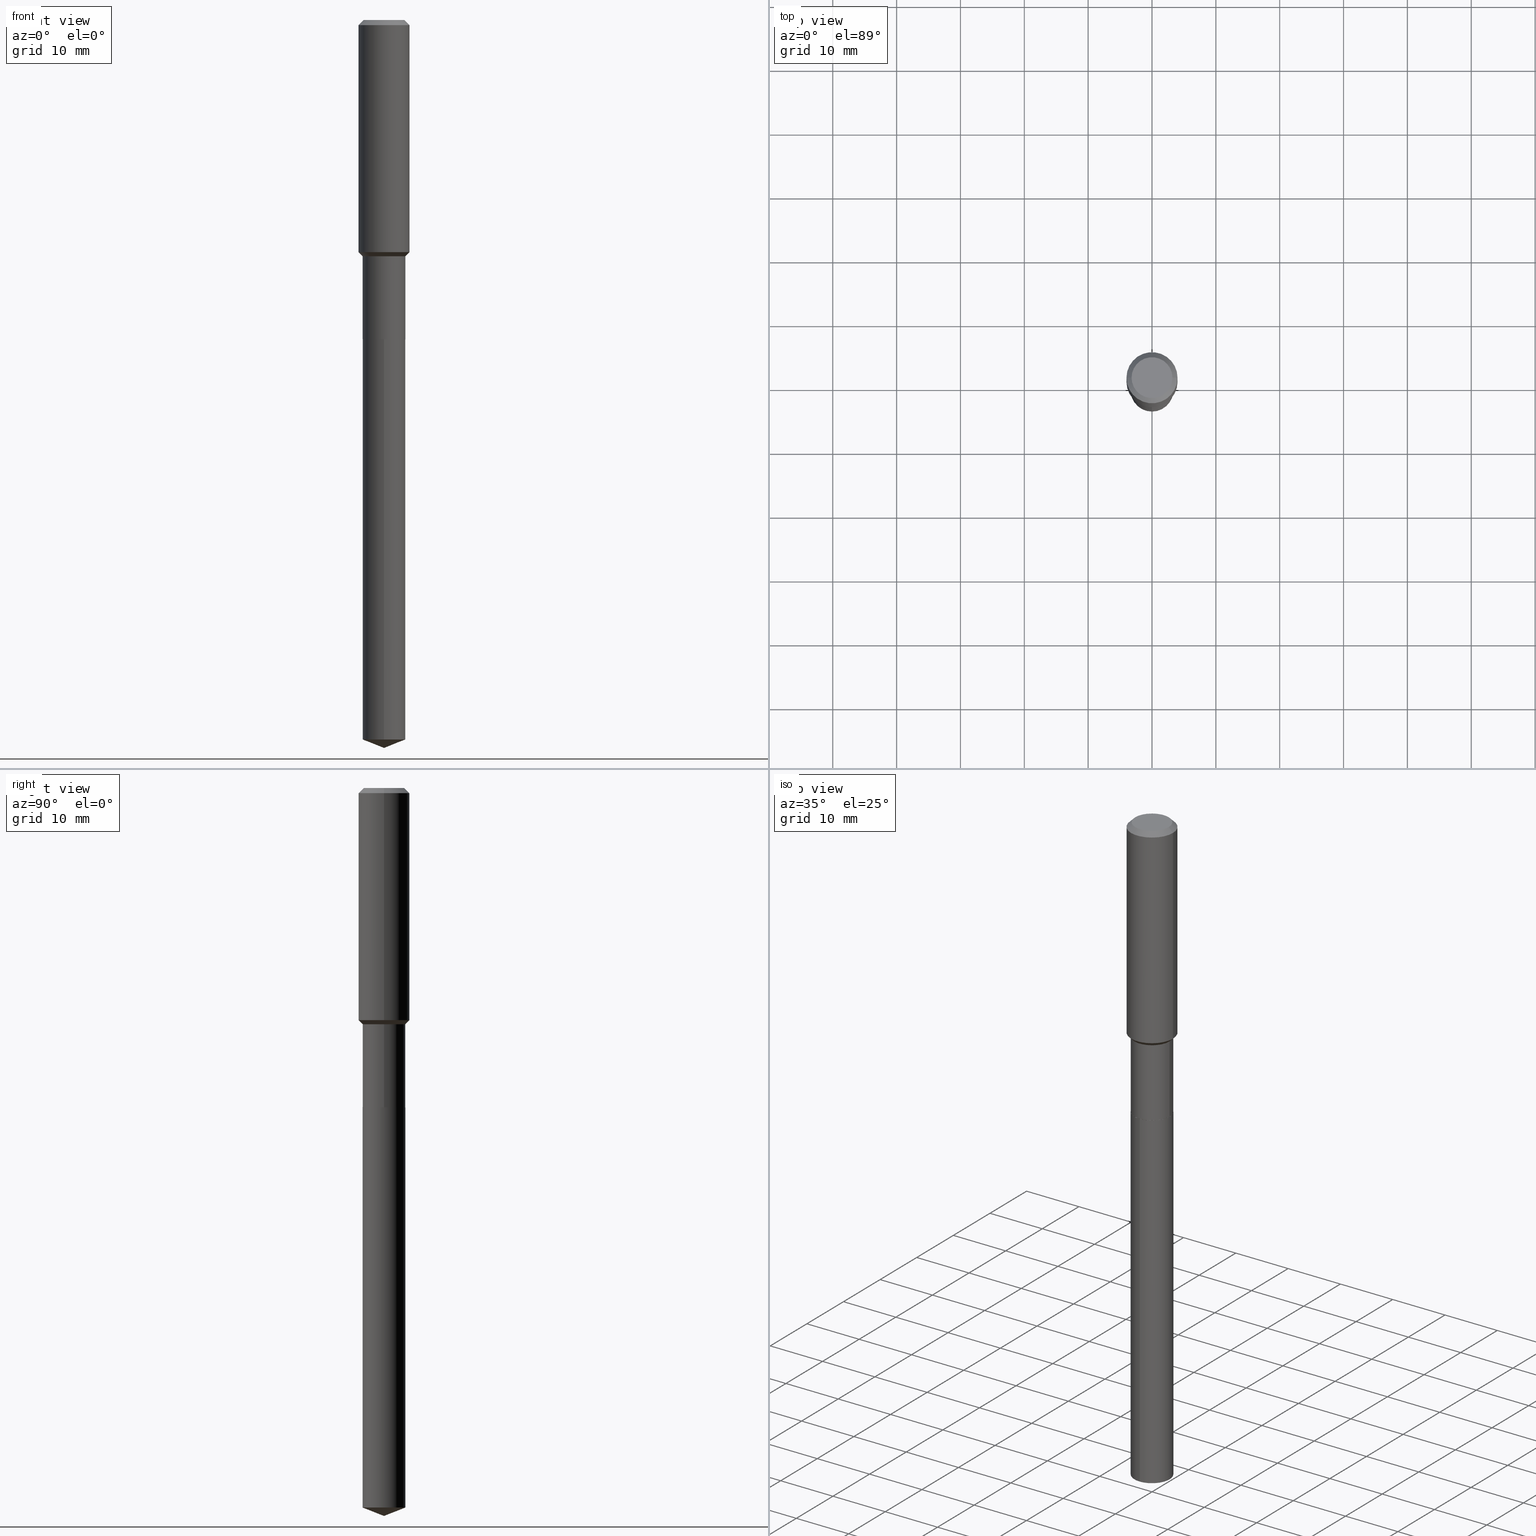
[diagram: canonical four-view strip — front | top / right | iso, engineering-drawing reading convention]
A machine part, canonical four-view strip (front | top / right | iso — engineering-drawing reading convention). The complete STEP part file that produces these views, byte-faithful:
ISO-10303-21;
HEADER;
FILE_DESCRIPTION (( 'STEP AP203' ),
    '1' );
FILE_NAME ('66643.STEP',
    '2024-04-25T02:42:03',
    ( '' ),
    ( '' ),
    'SwSTEP 2.0',
    'SolidWorks 2023',
    '' );
FILE_SCHEMA (( 'CONFIG_CONTROL_DESIGN' ));
ENDSEC;

DATA;
#1 = CARTESIAN_POINT ( 'NONE',  ( -0.1260000000000000009, 9.348441284752484904E-16, 3.860086710906114178E-18 ) ) ;
#2 = EDGE_CURVE ( 'NONE', #22, #226, #352, .T. ) ;
#3 = PERSON_AND_ORGANIZATION ( #292, #380 ) ;
#4 = APPLICATION_CONTEXT ( 'configuration controlled 3d designs of mechanical parts and assemblies' ) ;
#5 = PRODUCT_DEFINITION_SHAPE ( 'NONE', 'NONE',  #345 ) ;
#6 = AXIS2_PLACEMENT_3D ( 'NONE', #229, #231, #264 ) ;
#7 = CIRCLE ( 'NONE', #378, 0.1318999999999999895 ) ;
#8 = APPROVAL_PERSON_ORGANIZATION ( #487, #484, #402 ) ;
#9 = ORIENTED_EDGE ( 'NONE', *, *, #341, .F. ) ;
#10 = CALENDAR_DATE ( 2024, 24, 4 ) ;
#11 = EDGE_CURVE ( 'NONE', #226, #115, #162, .T. ) ;
#12 = AXIS2_PLACEMENT_3D ( 'NONE', #181, #176, #245 ) ;
#13 = EDGE_LOOP ( 'NONE', ( #428, #224, #235, #80 ) ) ;
#14 = ORIENTED_EDGE ( 'NONE', *, *, #289, .F. ) ;
#15 = DIMENSIONAL_EXPONENTS ( 1.000000000000000000, 0.000000000000000000, 0.000000000000000000, 0.000000000000000000, 0.000000000000000000, 0.000000000000000000, 0.000000000000000000 ) ;
#16 = CARTESIAN_POINT ( 'NONE',  ( -0.1313999999999999890, -5.939327860723960338E-15, -1.968500000000000139 ) ) ;
#17 = CARTESIAN_POINT ( 'NONE',  ( -4.719860820353100843E-47, 6.738710358733633822E-33, 1.930043355456229866E-18 ) ) ;
#18 = AXIS2_PLACEMENT_3D ( 'NONE', #58, #354, #358 ) ;
#19 = CIRCLE ( 'NONE', #371, 0.1260000000000000009 ) ;
#20 = DIRECTION ( 'NONE',  ( -2.445397477310179660E-29, 3.491583485851871163E-15, 1.000000000000000000 ) ) ;
#21 = DIRECTION ( 'NONE',  ( -1.000000000000000000, 6.982962677686265922E-15, -4.876176775795935793E-29 ) ) ;
#22 = VERTEX_POINT ( 'NONE', #126 ) ;
#23 = CARTESIAN_POINT ( 'NONE',  ( 7.703226739483228723E-31, -1.099816621735597661E-16, -0.03150000000000019451 ) ) ;
#24 = ORIENTED_EDGE ( 'NONE', *, *, #444, .F. ) ;
#25 = ORIENTED_EDGE ( 'NONE', *, *, #361, .T. ) ;
#26 = DIRECTION ( 'NONE',  ( -2.445468806185136597E-29, 3.491481338843145583E-15, 1.000000000000000000 ) ) ;
#27 = EDGE_LOOP ( 'NONE', ( #335, #130, #418 ) ) ;
#28 = LINE ( 'NONE', #166, #396 ) ;
#29 = LINE ( 'NONE', #41, #478 ) ;
#30 = EDGE_CURVE ( 'NONE', #297, #129, #272, .T. ) ;
#31 = DIRECTION ( 'NONE',  ( -2.445397477310179660E-29, 3.491583485851871163E-15, 1.000000000000000000 ) ) ;
#32 = DIRECTION ( 'NONE',  ( 1.000000000000000000, -6.982962677686265133E-15, 0.000000000000000000 ) ) ;
#33 = CARTESIAN_POINT ( 'NONE',  ( 1.059404549109931292E-28, -1.621709356054687186E-14, -4.488199999999999079 ) ) ;
#34 =( NAMED_UNIT ( * ) PLANE_ANGLE_UNIT ( ) SI_UNIT ( $, .RADIAN. ) );
#35 = DIRECTION ( 'NONE',  ( -2.445468806185136597E-29, 3.491481338843145583E-15, 1.000000000000000000 ) ) ;
#36 = CYLINDRICAL_SURFACE ( 'NONE', #306, 0.1575000000000000844 ) ;
#37 = CALENDAR_DATE ( 2024, 24, 4 ) ;
#38 = PLANE ( 'NONE',  #78 ) ;
#39 = LOCAL_TIME ( 22, 42, 3.000000000000000000, #110 ) ;
#40 = CARTESIAN_POINT ( 'NONE',  ( 0.000000000000000000, 0.000000000000000000, 0.000000000000000000 ) ) ;
#41 = CARTESIAN_POINT ( 'NONE',  ( 9.372058684676199937E-16, 0.1318999999999931061, -1.968500000000000361 ) ) ;
#42 = CALENDAR_DATE ( 2024, 24, 4 ) ;
#43 = CC_DESIGN_PERSON_AND_ORGANIZATION_ASSIGNMENT ( #291, #106, ( #345 ) ) ;
#44 = EDGE_CURVE ( 'NONE', #348, #385, #94, .T. ) ;
#45 = AXIS2_PLACEMENT_3D ( 'NONE', #304, #135, #160 ) ;
#46 = CARTESIAN_POINT ( 'NONE',  ( 3.561825316208651906E-29, -5.085342570025042633E-15, -1.456500000000000128 ) ) ;
#47 = ORIENTED_EDGE ( 'NONE', *, *, #216, .F. ) ;
#48 = CARTESIAN_POINT ( 'NONE',  ( 4.813905344975441835E-29, -6.872981015512731707E-15, -1.968500000000000139 ) ) ;
#49 = LINE ( 'NONE', #309, #157 ) ;
#50 = EDGE_LOOP ( 'NONE', ( #463, #395 ) ) ;
#51 = AXIS2_PLACEMENT_3D ( 'NONE', #168, #317, #32 ) ;
#52 = ORIENTED_EDGE ( 'NONE', *, *, #141, .T. ) ;
#53 = CARTESIAN_POINT ( 'NONE',  ( -0.1318999999999999062, -4.148136701557471154E-15, -1.456500000000000128 ) ) ;
#54 = DIRECTION ( 'NONE',  ( -0.7071067811865451302, 2.468850131082231817E-15, -0.7071067811865499042 ) ) ;
#55 = DIRECTION ( 'NONE',  ( 1.000000000000000000, -6.982962677686269077E-15, 0.000000000000000000 ) ) ;
#56 = ORIENTED_EDGE ( 'NONE', *, *, #258, .T. ) ;
#57 = EDGE_CURVE ( 'NONE', #316, #372, #422, .T. ) ;
#58 = CARTESIAN_POINT ( 'NONE',  ( 3.499221314770312017E-29, -4.995960647750656917E-15, -1.430900000000000061 ) ) ;
#59 = CARTESIAN_POINT ( 'NONE',  ( -8.529991786413033970E-28, 1.217931928410080037E-13, 34.88187874015748235 ) ) ;
#60 = VECTOR ( 'NONE', #281, 39.37007874015748143 ) ;
#61 = CARTESIAN_POINT ( 'NONE',  ( 3.561825316208651906E-29, -5.085342570025042633E-15, -1.456500000000000128 ) ) ;
#62 = DIRECTION ( 'NONE',  ( 1.000000000000000000, -6.982962677686265922E-15, 0.000000000000000000 ) ) ;
#63 = APPROVAL_DATE_TIME ( #217, #484 ) ;
#64 = APPLICATION_PROTOCOL_DEFINITION ( 'international standard', 'config_control_design', 1994, #4 ) ;
#65 = LINE ( 'NONE', #53, #187 ) ;
#66 = CARTESIAN_POINT ( 'NONE',  ( -9.017535279989762188E-30, -1.505812983671227706E-14, -1.968499999999999694 ) ) ;
#67 = MANIFOLD_SOLID_BREP ( 'Body-Move/Copy2[2]', #133 ) ;
#68 = ADVANCED_FACE ( 'NONE', ( #156 ), #332, .T. ) ;
#69 = AXIS2_PLACEMENT_3D ( 'NONE', #473, #26, #386 ) ;
#70 = DIRECTION ( 'NONE',  ( -2.445397477310179380E-29, 3.491583485851871163E-15, 1.000000000000000000 ) ) ;
#71 = DIRECTION ( 'NONE',  ( 1.000000000000000000, -6.982962677686265922E-15, 4.876281427513067258E-29 ) ) ;
#72 = PERSON_AND_ORGANIZATION ( #292, #380 ) ;
#73 = ORIENTED_EDGE ( 'NONE', *, *, #465, .T. ) ;
#74 = DIRECTION ( 'NONE',  ( -2.445468806185136597E-29, 3.491481338843145583E-15, 1.000000000000000000 ) ) ;
#75 = AXIS2_PLACEMENT_3D ( 'NONE', #442, #239, #294 ) ;
#76 = AXIS2_PLACEMENT_3D ( 'NONE', #475, #268, #132 ) ;
#77 = FACE_OUTER_BOUND ( 'NONE', #220, .T. ) ;
#78 = AXIS2_PLACEMENT_3D ( 'NONE', #66, #210, #327 ) ;
#79 = CARTESIAN_POINT ( 'NONE',  ( -0.1575000000000000011, 9.898349595620272334E-16, -0.03150000000000019451 ) ) ;
#80 = ORIENTED_EDGE ( 'NONE', *, *, #57, .F. ) ;
#81 = ORIENTED_EDGE ( 'NONE', *, *, #30, .F. ) ;
#82 = ORIENTED_EDGE ( 'NONE', *, *, #289, .T. ) ;
#83 = CARTESIAN_POINT ( 'NONE',  ( 0.1318999999999999340, -9.210527771868182178E-16, 6.431677167274836239E-30 ) ) ;
#84 = LINE ( 'NONE', #33, #427 ) ;
#85 = CONICAL_SURFACE ( 'NONE', #227, 0.1313999999999999890, 0.7853981633975507526 ) ;
#86 = APPROVAL_PERSON_ORGANIZATION ( #72, #128, #174 ) ;
#87 = ORIENTED_EDGE ( 'NONE', *, *, #274, .T. ) ;
#88 = LINE ( 'NONE', #172, #449 ) ;
#89 = EDGE_CURVE ( 'NONE', #129, #297, #477, .T. ) ;
#90 = DIRECTION ( 'NONE',  ( -2.445468806185136597E-29, 3.491481338843145583E-15, 1.000000000000000000 ) ) ;
#91 = LINE ( 'NONE', #234, #462 ) ;
#92 = LINE ( 'NONE', #362, #295 ) ;
#93 = CALENDAR_DATE ( 2024, 24, 4 ) ;
#94 = CIRCLE ( 'NONE', #69, 0.1575000000000001676 ) ;
#95 = CONICAL_SURFACE ( 'NONE', #370, 99.94676754584064327, 1.195550537616121733 ) ;
#96 = COORDINATED_UNIVERSAL_TIME_OFFSET ( 5, 0, .BEHIND. ) ;
#97 = AXIS2_PLACEMENT_3D ( 'NONE', #40, #441, #243 ) ;
#98 = DIRECTION ( 'NONE',  ( 0.7071067811865451302, -7.319954787623248157E-15, -0.7071067811865499042 ) ) ;
#99 = DIRECTION ( 'NONE',  ( -2.445468806185136597E-29, 3.491481338843145583E-15, 1.000000000000000000 ) ) ;
#100 = CARTESIAN_POINT ( 'NONE',  ( 1.097543295766354916E-28, -1.567092500120036717E-14, -4.488199999999999967 ) ) ;
#101 = DATE_AND_TIME ( #42, #451 ) ;
#102 =( NAMED_UNIT ( * ) SI_UNIT ( $, .STERADIAN. ) SOLID_ANGLE_UNIT ( ) );
#103 = CARTESIAN_POINT ( 'NONE',  ( 0.000000000000000000, 0.000000000000000000, 0.000000000000000000 ) ) ;
#104 = DIRECTION ( 'NONE',  ( -2.445468806185136597E-29, 3.491481338843145583E-15, 1.000000000000000000 ) ) ;
#105 = PRODUCT_RELATED_PRODUCT_CATEGORY ( 'detail', '', ( #456 ) ) ;
#106 = PERSON_AND_ORGANIZATION_ROLE ( 'creator' ) ;
#107 = CYLINDRICAL_SURFACE ( 'NONE', #421, 0.1318999999999999895 ) ;
#108 = AXIS2_PLACEMENT_3D ( 'NONE', #429, #432, #394 ) ;
#109 = AXIS2_PLACEMENT_3D ( 'NONE', #313, #325, #111 ) ;
#110 = COORDINATED_UNIVERSAL_TIME_OFFSET ( 5, 0, .BEHIND. ) ;
#111 = DIRECTION ( 'NONE',  ( 1.000000000000000000, -6.982962677686265922E-15, 4.876281427513067258E-29 ) ) ;
#112 = CARTESIAN_POINT ( 'NONE',  ( 0.1575000000000000844, -1.099816621735587677E-15, 7.679978421878603638E-30 ) ) ;
#113 = ADVANCED_FACE ( 'NONE', ( #390 ), #369, .T. ) ;
#114 = FACE_OUTER_BOUND ( 'NONE', #127, .T. ) ;
#115 = VERTEX_POINT ( 'NONE', #343 ) ;
#116 = CLOSED_SHELL ( 'NONE', ( #190, #410, #125, #298, #184 ) ) ;
#117 = CIRCLE ( 'NONE', #213, 0.1575000000000000011 ) ;
#118 = SECURITY_CLASSIFICATION ( '', '', #182 ) ;
#119 = EDGE_LOOP ( 'NONE', ( #122, #73, #471, #186 ) ) ;
#120 = ORIENTED_EDGE ( 'NONE', *, *, #274, .F. ) ;
#121 = CC_DESIGN_PERSON_AND_ORGANIZATION_ASSIGNMENT ( #445, #293, ( #456 ) ) ;
#122 = ORIENTED_EDGE ( 'NONE', *, *, #468, .F. ) ;
#123 = CONICAL_SURFACE ( 'NONE', #448, 99.94676754584064327, 1.195550537616121733 ) ;
#124 = AXIS2_PLACEMENT_3D ( 'NONE', #103, #399, #453 ) ;
#125 = ADVANCED_FACE ( 'NONE', ( #480 ), #123, .T. ) ;
#126 = CARTESIAN_POINT ( 'NONE',  ( 0.1313999999999999890, -7.790542311360707115E-15, -1.968500000000000139 ) ) ;
#127 = EDGE_LOOP ( 'NONE', ( #466, #271 ) ) ;
#128 = APPROVAL ( #367, 'UNSPECIFIED' ) ;
#129 = VERTEX_POINT ( 'NONE', #276 ) ;
#130 = ORIENTED_EDGE ( 'NONE', *, *, #222, .T. ) ;
#131 = DIRECTION ( 'NONE',  ( 0.7071067811866199593, -2.468850131083015945E-15, 0.7071067811864750752 ) ) ;
#132 = DIRECTION ( 'NONE',  ( 1.000000000000000000, -6.982962677686265922E-15, 0.000000000000000000 ) ) ;
#133 = CLOSED_SHELL ( 'NONE', ( #68, #278, #401, #225, #177, #200, #333, #439, #113, #474, #420, #366 ) ) ;
#134 = AXIS2_PLACEMENT_3D ( 'NONE', #46, #350, #286 ) ;
#135 = DIRECTION ( 'NONE',  ( 2.445468806185136597E-29, -3.491481338843145583E-15, -1.000000000000000000 ) ) ;
#136 = CARTESIAN_POINT ( 'NONE',  ( 4.813905344975441835E-29, -6.872981015512731707E-15, -1.968500000000000139 ) ) ;
#137 = CARTESIAN_POINT ( 'NONE',  ( 1.136379234426400663E-28, -1.512435428908050663E-14, -4.488199999999999079 ) ) ;
#138 = CARTESIAN_POINT ( 'NONE',  ( 4.812682610572349594E-29, -6.871235274843310993E-15, -1.968000000000000194 ) ) ;
#139 = CYLINDRICAL_SURFACE ( 'NONE', #12, 0.1318999999999999895 ) ;
#140 = CONICAL_SURFACE ( 'NONE', #344, 0.1575000000000000011, 0.7853981633974449483 ) ;
#141 = EDGE_CURVE ( 'NONE', #115, #155, #147, .T. ) ;
#142 = CARTESIAN_POINT ( 'NONE',  ( 0.1260000000000000009, -1.027466422270894443E-15, 3.860086710919128072E-18 ) ) ;
#143 = PLANE ( 'NONE',  #388 ) ;
#144 = DIRECTION ( 'NONE',  ( -2.445397477310179660E-29, 3.491583485851871163E-15, 1.000000000000000000 ) ) ;
#145 = APPROVAL_ROLE ( '' ) ;
#146 = APPROVAL_DATE_TIME ( #329, #128 ) ;
#147 = CIRCLE ( 'NONE', #108, 0.1318999999999999895 ) ;
#148 = CC_DESIGN_PERSON_AND_ORGANIZATION_ASSIGNMENT ( #330, #328, ( #188 ) ) ;
#149 = VERTEX_POINT ( 'NONE', #199 ) ;
#150 = PERSON_AND_ORGANIZATION_ROLE ( 'creator' ) ;
#151 = ORIENTED_EDGE ( 'NONE', *, *, #353, .T. ) ;
#152 = AXIS2_PLACEMENT_3D ( 'NONE', #250, #219, #461 ) ;
#153 = ORIENTED_EDGE ( 'NONE', *, *, #170, .F. ) ;
#154 = ORIENTED_EDGE ( 'NONE', *, *, #57, .T. ) ;
#155 = VERTEX_POINT ( 'NONE', #351 ) ;
#156 = FACE_OUTER_BOUND ( 'NONE', #159, .T. ) ;
#157 = VECTOR ( 'NONE', #131, 39.37007874015748143 ) ;
#158 = LOCAL_TIME ( 22, 42, 3.000000000000000000, #408 ) ;
#159 = EDGE_LOOP ( 'NONE', ( #233, #259, #47, #24 ) ) ;
#160 = DIRECTION ( 'NONE',  ( -1.000000000000000000, 6.982962677686265922E-15, 0.000000000000000000 ) ) ;
#161 = DIRECTION ( 'NONE',  ( 2.445468806185136597E-29, -3.491481338843145583E-15, -1.000000000000000000 ) ) ;
#162 = LINE ( 'NONE', #16, #413 ) ;
#163 = DIRECTION ( 'NONE',  ( 1.000000000000000000, -6.982962677686265133E-15, 0.000000000000000000 ) ) ;
#164 = VECTOR ( 'NONE', #54, 39.37007874015748143 ) ;
#165 = AXIS2_PLACEMENT_3D ( 'NONE', #322, #99, #62 ) ;
#166 = CARTESIAN_POINT ( 'NONE',  ( -0.1318999999999999340, 9.372058684675716759E-16, -6.488075384046218569E-30 ) ) ;
#167 = APPLICATION_CONTEXT ( 'configuration controlled 3d designs of mechanical parts and assemblies' ) ;
#168 = CARTESIAN_POINT ( 'NONE',  ( 4.813905344975441835E-29, -6.872981015512731707E-15, -1.968500000000000139 ) ) ;
#169 = DIRECTION ( 'NONE',  ( -2.445468806185136597E-29, 3.491481338843145583E-15, 1.000000000000000000 ) ) ;
#170 = EDGE_CURVE ( 'NONE', #115, #459, #28, .T. ) ;
#171 = DIRECTION ( 'NONE',  ( -6.982962677686265922E-15, -1.000000000000000000, 4.142301734138382417E-15 ) ) ;
#172 = CARTESIAN_POINT ( 'NONE',  ( -0.1575000000000000844, 1.119104808822158392E-15, -7.747322767151481189E-30 ) ) ;
#173 = DIRECTION ( 'NONE',  ( 1.000000000000000000, -6.982962677686265133E-15, 0.000000000000000000 ) ) ;
#174 = APPROVAL_ROLE ( '' ) ;
#175 = EDGE_CURVE ( 'NONE', #149, #257, #284, .T. ) ;
#176 = DIRECTION ( 'NONE',  ( -2.445397477310179660E-29, 3.491583485851871163E-15, 1.000000000000000000 ) ) ;
#177 = ADVANCED_FACE ( 'NONE', ( #485 ), #326, .T. ) ;
#178 = DIRECTION ( 'NONE',  ( -2.445468806185136597E-29, 3.491481338843145583E-15, 1.000000000000000000 ) ) ;
#179 = PERSON_AND_ORGANIZATION ( #292, #380 ) ;
#180 = EDGE_CURVE ( 'NONE', #338, #459, #407, .T. ) ;
#181 = CARTESIAN_POINT ( 'NONE',  ( 4.813905344975440714E-29, -6.872981015512730918E-15, -1.968499999999999694 ) ) ;
#182 = SECURITY_CLASSIFICATION_LEVEL ( 'unclassified' ) ;
#183 = ORIENTED_EDGE ( 'NONE', *, *, #353, .F. ) ;
#184 = ADVANCED_FACE ( 'NONE', ( #114 ), #143, .F. ) ;
#185 = ORIENTED_EDGE ( 'NONE', *, *, #141, .F. ) ;
#186 = ORIENTED_EDGE ( 'NONE', *, *, #349, .F. ) ;
#187 = VECTOR ( 'NONE', #290, 39.37007874015748143 ) ;
#188 = PRODUCT_DEFINITION_FORMATION_WITH_SPECIFIED_SOURCE ( 'ANY', '', #456, .NOT_KNOWN. ) ;
#189 = EDGE_LOOP ( 'NONE', ( #424, #382, #464, #14 ) ) ;
#190 = ADVANCED_FACE ( 'NONE', ( #446 ), #107, .T. ) ;
#191 = EDGE_LOOP ( 'NONE', ( #279, #25, #193, #185 ) ) ;
#192 = PLANE ( 'NONE',  #248 ) ;
#193 = ORIENTED_EDGE ( 'NONE', *, *, #444, .T. ) ;
#194 = DIRECTION ( 'NONE',  ( -2.445468806185136597E-29, 3.491481338843145583E-15, 1.000000000000000000 ) ) ;
#195 = CIRCLE ( 'NONE', #51, 0.1313999999999999890 ) ;
#196 = VERTEX_POINT ( 'NONE', #320 ) ;
#197 = DIRECTION ( 'NONE',  ( -2.445397477310179660E-29, 3.491583485851871163E-15, 1.000000000000000000 ) ) ;
#198 = FACE_OUTER_BOUND ( 'NONE', #236, .T. ) ;
#199 = CARTESIAN_POINT ( 'NONE',  ( 9.372058684676801443E-16, 0.1318999999999844741, -4.436243208266390070 ) ) ;
#200 = ADVANCED_FACE ( 'NONE', ( #77 ), #318, .T. ) ;
#201 = CARTESIAN_POINT ( 'NONE',  ( 3.561825316208651906E-29, -5.085342570025042633E-15, -1.456500000000000128 ) ) ;
#202 = CONICAL_SURFACE ( 'NONE', #415, 0.1318999999999999062, 0.7853981633974506105 ) ;
#203 = AXIS2_PLACEMENT_3D ( 'NONE', #355, #169, #392 ) ;
#204 = CARTESIAN_POINT ( 'NONE',  ( 0.1575000000000001676, -6.095777269486245186E-15, -1.430900000000000061 ) ) ;
#205 = LENGTH_MEASURE_WITH_UNIT ( LENGTH_MEASURE( 0.02539999999999999897 ), #409 );
#206 = CARTESIAN_POINT ( 'NONE',  ( 0.1318999999999999062, -6.006395347211860259E-15, -1.456500000000000128 ) ) ;
#207 = CARTESIAN_POINT ( 'NONE',  ( -0.1313999999999999890, -5.936678633549849137E-15, -1.968500000000000139 ) ) ;
#208 = SHAPE_DEFINITION_REPRESENTATION ( #5, #454 ) ;
#209 = CC_DESIGN_DATE_AND_TIME_ASSIGNMENT ( #455, #249, ( #118 ) ) ;
#210 = DIRECTION ( 'NONE',  ( -2.438088387897960049E-29, 3.491481338843145188E-15, 1.000000000000000000 ) ) ;
#211 = PERSON_AND_ORGANIZATION ( #292, #380 ) ;
#212 = MECHANICAL_CONTEXT ( 'NONE', #167, 'mechanical' ) ;
#213 = AXIS2_PLACEMENT_3D ( 'NONE', #223, #381, #346 ) ;
#214 = FACE_OUTER_BOUND ( 'NONE', #119, .T. ) ;
#215 = UNCERTAINTY_MEASURE_WITH_UNIT (LENGTH_MEASURE( 1.000000000000000082E-05 ), #363, 'distance_accuracy_value', 'NONE');
#216 = EDGE_CURVE ( 'NONE', #155, #115, #7, .T. ) ;
#217 = DATE_AND_TIME ( #37, #158 ) ;
#218 = DIRECTION ( 'NONE',  ( -2.445468806185136597E-29, 3.491481338843145583E-15, 1.000000000000000000 ) ) ;
#219 = DIRECTION ( 'NONE',  ( -2.445397477310179660E-29, 3.491583485851871163E-15, 1.000000000000000000 ) ) ;
#220 = EDGE_LOOP ( 'NONE', ( #153, #52, #82, #254 ) ) ;
#221 = CC_DESIGN_SECURITY_CLASSIFICATION ( #118, ( #188 ) ) ;
#222 = EDGE_CURVE ( 'NONE', #303, #257, #84, .T. ) ;
#223 = CARTESIAN_POINT ( 'NONE',  ( 7.703226739483228723E-31, -1.099816621735597661E-16, -0.03150000000000019451 ) ) ;
#224 = ORIENTED_EDGE ( 'NONE', *, *, #393, .T. ) ;
#225 = ADVANCED_FACE ( 'NONE', ( #198 ), #262, .T. ) ;
#226 = VERTEX_POINT ( 'NONE', #207 ) ;
#227 = AXIS2_PLACEMENT_3D ( 'NONE', #440, #178, #173 ) ;
#228 = CARTESIAN_POINT ( 'NONE',  ( -0.1318999999999999062, -5.041083053966604545E-15, -1.456500000000000128 ) ) ;
#229 = CARTESIAN_POINT ( 'NONE',  ( 4.813905344975441835E-29, -6.872981015512731707E-15, -1.968500000000000139 ) ) ;
#230 = DIRECTION ( 'NONE',  ( -6.982962677686265922E-15, -1.000000000000000000, 3.498627837349980557E-15 ) ) ;
#231 = DIRECTION ( 'NONE',  ( -2.445397477310179660E-29, 3.491583485851871163E-15, 1.000000000000000000 ) ) ;
#232 = ORIENTED_EDGE ( 'NONE', *, *, #267, .F. ) ;
#233 = ORIENTED_EDGE ( 'NONE', *, *, #2, .T. ) ;
#234 = CARTESIAN_POINT ( 'NONE',  ( -9.210527771867702945E-16, -0.1319000000000068729, -1.968499999999999250 ) ) ;
#235 = ORIENTED_EDGE ( 'NONE', *, *, #460, .T. ) ;
#236 = EDGE_LOOP ( 'NONE', ( #376, #472, #308, #416 ) ) ;
#237 = FACE_OUTER_BOUND ( 'NONE', #483, .T. ) ;
#238 = APPROVAL_PERSON_ORGANIZATION ( #179, #256, #145 ) ;
#239 = DIRECTION ( 'NONE',  ( -2.445397477310179660E-29, 3.491583485851871163E-15, 1.000000000000000000 ) ) ;
#240 = CARTESIAN_POINT ( 'NONE',  ( -8.529991786413033970E-28, 1.217931928410080037E-13, 34.88187874015748235 ) ) ;
#241 = APPROVAL_STATUS ( 'not_yet_approved' ) ;
#242 = LINE ( 'NONE', #137, #60 ) ;
#243 = DIRECTION ( 'NONE',  ( 1.000000000000000000, 0.000000000000000000, 0.000000000000000000 ) ) ;
#244 = DIRECTION ( 'NONE',  ( 6.982962677686265922E-15, 1.000000000000000000, -3.491583485851871163E-15 ) ) ;
#245 = DIRECTION ( 'NONE',  ( -6.982962677686265922E-15, -1.000000000000000000, 4.142301734138382417E-15 ) ) ;
#246 = DATE_AND_TIME ( #10, #389 ) ;
#247 = CARTESIAN_POINT ( 'NONE',  ( 4.813905344975440714E-29, -6.872981015512730918E-15, -1.968499999999999694 ) ) ;
#248 = AXIS2_PLACEMENT_3D ( 'NONE', #17, #305, #21 ) ;
#249 = DATE_TIME_ROLE ( 'classification_date' ) ;
#250 = CARTESIAN_POINT ( 'NONE',  ( 1.084851836111940160E-28, -1.548931244881877348E-14, -4.436243208266390070 ) ) ;
#251 = CARTESIAN_POINT ( 'NONE',  ( 1.966909227049594834E-29, -1.095004149733843425E-14, -1.968500000000000139 ) ) ;
#252 = EDGE_LOOP ( 'NONE', ( #470, #302 ) ) ;
#253 = EDGE_CURVE ( 'NONE', #372, #196, #300, .T. ) ;
#254 = ORIENTED_EDGE ( 'NONE', *, *, #465, .F. ) ;
#255 = LOCAL_TIME ( 22, 42, 3.000000000000000000, #282 ) ;
#256 = APPROVAL ( #360, 'UNSPECIFIED' ) ;
#257 = VERTEX_POINT ( 'NONE', #273 ) ;
#258 = EDGE_CURVE ( 'NONE', #385, #372, #88, .T. ) ;
#259 = ORIENTED_EDGE ( 'NONE', *, *, #11, .T. ) ;
#260 = CC_DESIGN_PERSON_AND_ORGANIZATION_ASSIGNMENT ( #3, #331, ( #118 ) ) ;
#261 = ORIENTED_EDGE ( 'NONE', *, *, #44, .T. ) ;
#262 = CONICAL_SURFACE ( 'NONE', #165, 0.1318999999999999062, 0.7853981633974506105 ) ;
#263 = CC_DESIGN_APPROVAL ( #256, ( #188 ) ) ;
#264 = DIRECTION ( 'NONE',  ( -6.982962677686265922E-15, -1.000000000000000000, 4.142301734138382417E-15 ) ) ;
#265 = ORIENTED_EDGE ( 'NONE', *, *, #349, .T. ) ;
#266 = ORIENTED_EDGE ( 'NONE', *, *, #222, .F. ) ;
#267 = EDGE_CURVE ( 'NONE', #348, #196, #334, .T. ) ;
#268 = DIRECTION ( 'NONE',  ( -2.445468806185136597E-29, 3.491481338843145583E-15, 1.000000000000000000 ) ) ;
#269 = DIRECTION ( 'NONE',  ( -6.982962677686265922E-15, -1.000000000000000000, 4.142301734138382417E-15 ) ) ;
#270 = LINE ( 'NONE', #430, #324 ) ;
#271 = ORIENTED_EDGE ( 'NONE', *, *, #89, .T. ) ;
#272 = CIRCLE ( 'NONE', #6, 0.1318999999999999895 ) ;
#273 = CARTESIAN_POINT ( 'NONE',  ( -9.210527771867097494E-16, -0.1319000000000154493, -4.436243208266389182 ) ) ;
#274 = EDGE_CURVE ( 'NONE', #257, #149, #486, .T. ) ;
#275 = AXIS2_PLACEMENT_3D ( 'NONE', #458, #74, #336 ) ;
#276 = CARTESIAN_POINT ( 'NONE',  ( 9.372058684676809332E-16, 0.1318999999999931061, -1.968500000000000583 ) ) ;
#277 = DIRECTION ( 'NONE',  ( -2.445468806185136877E-29, 3.491481338843145188E-15, 1.000000000000000000 ) ) ;
#278 = ADVANCED_FACE ( 'NONE', ( #368 ), #140, .T. ) ;
#279 = ORIENTED_EDGE ( 'NONE', *, *, #11, .F. ) ;
#280 = DIRECTION ( 'NONE',  ( 0.7071067811865491270, -2.468850131082274021E-15, 0.7071067811865459074 ) ) ;
#281 = DIRECTION ( 'NONE',  ( 6.611014441532073689E-15, 0.9304175679820279043, 0.3665012267242884203 ) ) ;
#282 = COORDINATED_UNIVERSAL_TIME_OFFSET ( 5, 0, .BEHIND. ) ;
#283 = DIRECTION ( 'NONE',  ( 1.000000000000000000, -6.982962677686267499E-15, 4.876176775795936353E-29 ) ) ;
#284 = CIRCLE ( 'NONE', #75, 0.1318999999999999895 ) ;
#285 = CIRCLE ( 'NONE', #18, 0.1575000000000001676 ) ;
#286 = DIRECTION ( 'NONE',  ( 1.000000000000000000, -6.982962677686265922E-15, 0.000000000000000000 ) ) ;
#287 = DIRECTION ( 'NONE',  ( -2.445468806185136597E-29, 3.491481338843145583E-15, 1.000000000000000000 ) ) ;
#288 = CYLINDRICAL_SURFACE ( 'NONE', #275, 0.1575000000000000844 ) ;
#289 = EDGE_CURVE ( 'NONE', #155, #338, #425, .T. ) ;
#290 = DIRECTION ( 'NONE',  ( -0.7071067811865491270, 7.493145998870360471E-15, 0.7071067811865459074 ) ) ;
#291 = PERSON_AND_ORGANIZATION ( #292, #380 ) ;
#292 = PERSON ( 'UNSPECIFIED', 'UNSPECIFIED', 'UNSPECIFIED', ('UNSPECIFIED'), ('UNSPECIFIED'), ('UNSPECIFIED') ) ;
#293 = PERSON_AND_ORGANIZATION_ROLE ( 'design_owner' ) ;
#294 = DIRECTION ( 'NONE',  ( -6.982962677686265922E-15, -1.000000000000000000, 4.142301734138382417E-15 ) ) ;
#295 = VECTOR ( 'NONE', #98, 39.37007874015748143 ) ;
#296 = CC_DESIGN_APPROVAL ( #128, ( #345 ) ) ;
#297 = VERTEX_POINT ( 'NONE', #364 ) ;
#298 = ADVANCED_FACE ( 'NONE', ( #321 ), #139, .T. ) ;
#299 = AXIS2_PLACEMENT_3D ( 'NONE', #136, #90, #312 ) ;
#300 = CIRCLE ( 'NONE', #76, 0.1575000000000000011 ) ;
#301 = ORIENTED_EDGE ( 'NONE', *, *, #341, .T. ) ;
#302 = ORIENTED_EDGE ( 'NONE', *, *, #361, .F. ) ;
#303 = VERTEX_POINT ( 'NONE', #100 ) ;
#304 = CARTESIAN_POINT ( 'NONE',  ( 7.703226739483228723E-31, -1.099816621735597661E-16, -0.03150000000000019451 ) ) ;
#305 = DIRECTION ( 'NONE',  ( 2.438088387897960049E-29, -3.491481338843145188E-15, -1.000000000000000000 ) ) ;
#306 = AXIS2_PLACEMENT_3D ( 'NONE', #443, #104, #283 ) ;
#307 = ORIENTED_EDGE ( 'NONE', *, *, #482, .F. ) ;
#308 = ORIENTED_EDGE ( 'NONE', *, *, #44, .F. ) ;
#309 = CARTESIAN_POINT ( 'NONE',  ( 0.1313999999999999890, -7.790542311360707115E-15, -1.968500000000000139 ) ) ;
#310 = DIRECTION ( 'NONE',  ( -1.000000000000000000, 6.982962677686265922E-15, 0.000000000000000000 ) ) ;
#311 = DIRECTION ( 'NONE',  ( -0.7071067811866199593, 7.493145998870616062E-15, 0.7071067811864750752 ) ) ;
#312 = DIRECTION ( 'NONE',  ( 1.000000000000000000, -6.982962677686265133E-15, 0.000000000000000000 ) ) ;
#313 = CARTESIAN_POINT ( 'NONE',  ( -9.439721640706201686E-47, 1.347742071746726764E-32, 3.860086710912459732E-18 ) ) ;
#314 = CIRCLE ( 'NONE', #109, 0.1260000000000000009 ) ;
#315 = ORIENTED_EDGE ( 'NONE', *, *, #383, .T. ) ;
#316 = VERTEX_POINT ( 'NONE', #1 ) ;
#317 = DIRECTION ( 'NONE',  ( -2.445468806185136597E-29, 3.491481338843145583E-15, 1.000000000000000000 ) ) ;
#318 = CYLINDRICAL_SURFACE ( 'NONE', #203, 0.1318999999999999340 ) ;
#319 = CC_DESIGN_PERSON_AND_ORGANIZATION_ASSIGNMENT ( #211, #150, ( #188 ) ) ;
#320 = CARTESIAN_POINT ( 'NONE',  ( 0.1575000000000000011, -1.209798283909146741E-15, -0.03150000000000019451 ) ) ;
#321 = FACE_OUTER_BOUND ( 'NONE', #426, .T. ) ;
#322 = CARTESIAN_POINT ( 'NONE',  ( 3.561825316208651906E-29, -5.085342570025042633E-15, -1.456500000000000128 ) ) ;
#323 = DIRECTION ( 'NONE',  ( -6.982962677686265922E-15, -1.000000000000000000, 3.498627837349980557E-15 ) ) ;
#324 = VECTOR ( 'NONE', #280, 39.37007874015748143 ) ;
#325 = DIRECTION ( 'NONE',  ( -2.445468806185136597E-29, 3.491481338843145583E-15, 1.000000000000000000 ) ) ;
#326 = CYLINDRICAL_SURFACE ( 'NONE', #124, 0.1318999999999999340 ) ;
#327 = DIRECTION ( 'NONE',  ( 1.000000000000000000, -6.982962677686265922E-15, 4.876176775795935793E-29 ) ) ;
#328 = PERSON_AND_ORGANIZATION_ROLE ( 'design_supplier' ) ;
#329 = DATE_AND_TIME ( #93, #255 ) ;
#330 = PERSON_AND_ORGANIZATION ( #292, #380 ) ;
#331 = PERSON_AND_ORGANIZATION_ROLE ( 'classification_officer' ) ;
#332 = CONICAL_SURFACE ( 'NONE', #406, 0.1313999999999999890, 0.7853981633975507526 ) ;
#333 = ADVANCED_FACE ( 'NONE', ( #214 ), #202, .T. ) ;
#334 = LINE ( 'NONE', #112, #419 ) ;
#335 = ORIENTED_EDGE ( 'NONE', *, *, #383, .F. ) ;
#336 = DIRECTION ( 'NONE',  ( 1.000000000000000000, -6.982962677686267499E-15, 4.876176775795936353E-29 ) ) ;
#337 = CIRCLE ( 'NONE', #134, 0.1318999999999999062 ) ;
#338 = VERTEX_POINT ( 'NONE', #206 ) ;
#339 = EDGE_LOOP ( 'NONE', ( #266, #315, #120 ) ) ;
#340 = DIRECTION ( 'NONE',  ( -2.445468806185136877E-29, 3.491481338843145188E-15, 1.000000000000000000 ) ) ;
#341 = EDGE_CURVE ( 'NONE', #257, #297, #91, .T. ) ;
#342 = EDGE_LOOP ( 'NONE', ( #347, #307, #154, #417 ) ) ;
#343 = CARTESIAN_POINT ( 'NONE',  ( -0.1318999999999999895, -5.041083053966604545E-15, -1.968000000000000194 ) ) ;
#344 = AXIS2_PLACEMENT_3D ( 'NONE', #23, #161, #310 ) ;
#345 = PRODUCT_DEFINITION ( 'UNKNOWN', '', #188, #434 ) ;
#346 = DIRECTION ( 'NONE',  ( 1.000000000000000000, -6.982962677686265922E-15, 0.000000000000000000 ) ) ;
#347 = ORIENTED_EDGE ( 'NONE', *, *, #393, .F. ) ;
#348 = VERTEX_POINT ( 'NONE', #204 ) ;
#349 = EDGE_CURVE ( 'NONE', #385, #348, #285, .T. ) ;
#350 = DIRECTION ( 'NONE',  ( -2.445468806185136597E-29, 3.491481338843145583E-15, 1.000000000000000000 ) ) ;
#351 = CARTESIAN_POINT ( 'NONE',  ( 0.1318999999999999895, -7.792288052030129408E-15, -1.968000000000000194 ) ) ;
#352 = CIRCLE ( 'NONE', #299, 0.1313999999999999890 ) ;
#353 = EDGE_CURVE ( 'NONE', #149, #129, #29, .T. ) ;
#354 = DIRECTION ( 'NONE',  ( -2.445468806185136597E-29, 3.491481338843145583E-15, 1.000000000000000000 ) ) ;
#355 = CARTESIAN_POINT ( 'NONE',  ( 0.000000000000000000, 0.000000000000000000, 0.000000000000000000 ) ) ;
#356 = AXIS2_PLACEMENT_3D ( 'NONE', #61, #35, #488 ) ;
#357 =( GEOMETRIC_REPRESENTATION_CONTEXT ( 3 ) GLOBAL_UNCERTAINTY_ASSIGNED_CONTEXT ( ( #215 ) ) GLOBAL_UNIT_ASSIGNED_CONTEXT ( ( #363, #34, #102 ) ) REPRESENTATION_CONTEXT ( 'NONE', 'WORKASPACE' ) );
#358 = DIRECTION ( 'NONE',  ( 1.000000000000000000, -6.982962677686267499E-15, 0.000000000000000000 ) ) ;
#359 = FACE_OUTER_BOUND ( 'NONE', #191, .T. ) ;
#360 = APPROVAL_STATUS ( 'not_yet_approved' ) ;
#361 = EDGE_CURVE ( 'NONE', #226, #22, #195, .T. ) ;
#362 = CARTESIAN_POINT ( 'NONE',  ( 0.1575000000000000011, -1.190510096822576026E-15, -0.03150000000000019451 ) ) ;
#363 =( CONVERSION_BASED_UNIT ( 'INCH', #205 ) LENGTH_UNIT ( ) NAMED_UNIT ( #15 ) );
#364 = CARTESIAN_POINT ( 'NONE',  ( -9.210527771867702945E-16, -0.1319000000000068729, -1.968499999999999472 ) ) ;
#365 = COORDINATED_UNIVERSAL_TIME_OFFSET ( 5, 0, .BEHIND. ) ;
#366 = ADVANCED_FACE ( 'NONE', ( #359 ), #85, .T. ) ;
#367 = APPROVAL_STATUS ( 'not_yet_approved' ) ;
#368 = FACE_OUTER_BOUND ( 'NONE', #13, .T. ) ;
#369 = CONICAL_SURFACE ( 'NONE', #45, 0.1575000000000000011, 0.7853981633974449483 ) ;
#370 = AXIS2_PLACEMENT_3D ( 'NONE', #240, #144, #323 ) ;
#371 = AXIS2_PLACEMENT_3D ( 'NONE', #398, #218, #71 ) ;
#372 = VERTEX_POINT ( 'NONE', #397 ) ;
#373 = MANIFOLD_SOLID_BREP ( 'Body-Move/Copy2[1]', #116 ) ;
#374 = FACE_OUTER_BOUND ( 'NONE', #50, .T. ) ;
#375 = ORIENTED_EDGE ( 'NONE', *, *, #89, .F. ) ;
#376 = ORIENTED_EDGE ( 'NONE', *, *, #180, .T. ) ;
#377 = CC_DESIGN_DATE_AND_TIME_ASSIGNMENT ( #246, #447, ( #345 ) ) ;
#378 = AXIS2_PLACEMENT_3D ( 'NONE', #138, #481, #55 ) ;
#379 = EDGE_LOOP ( 'NONE', ( #384, #265, #457, #467 ) ) ;
#380 = ORGANIZATION ( 'UNSPECIFIED', 'UNSPECIFIED', '' ) ;
#381 = DIRECTION ( 'NONE',  ( -2.445468806185136597E-29, 3.491481338843145583E-15, 1.000000000000000000 ) ) ;
#382 = ORIENTED_EDGE ( 'NONE', *, *, #170, .T. ) ;
#383 = EDGE_CURVE ( 'NONE', #303, #149, #242, .T. ) ;
#384 = ORIENTED_EDGE ( 'NONE', *, *, #258, .F. ) ;
#385 = VERTEX_POINT ( 'NONE', #433 ) ;
#386 = DIRECTION ( 'NONE',  ( 1.000000000000000000, -6.982962677686267499E-15, 0.000000000000000000 ) ) ;
#387 = AXIS2_PLACEMENT_3D ( 'NONE', #476, #197, #269 ) ;
#388 = AXIS2_PLACEMENT_3D ( 'NONE', #251, #404, #244 ) ;
#389 = LOCAL_TIME ( 22, 42, 3.000000000000000000, #96 ) ;
#390 = FACE_OUTER_BOUND ( 'NONE', #342, .T. ) ;
#391 = EDGE_LOOP ( 'NONE', ( #87, #151, #81, #9 ) ) ;
#392 = DIRECTION ( 'NONE',  ( 1.000000000000000000, -6.982962677686267499E-15, 4.876176775795935793E-29 ) ) ;
#393 = EDGE_CURVE ( 'NONE', #412, #196, #92, .T. ) ;
#394 = DIRECTION ( 'NONE',  ( 1.000000000000000000, -6.982962677686269077E-15, 0.000000000000000000 ) ) ;
#395 = ORIENTED_EDGE ( 'NONE', *, *, #479, .T. ) ;
#396 = VECTOR ( 'NONE', #340, 39.37007874015748143 ) ;
#397 = CARTESIAN_POINT ( 'NONE',  ( -0.1575000000000000011, -1.433866346139949795E-15, -0.03150000000000019451 ) ) ;
#398 = CARTESIAN_POINT ( 'NONE',  ( -9.439721640706201686E-47, 1.347742071746726764E-32, 3.860086710912459732E-18 ) ) ;
#399 = DIRECTION ( 'NONE',  ( -2.445468806185136597E-29, 3.491481338843145583E-15, 1.000000000000000000 ) ) ;
#400 = DIRECTION ( 'NONE',  ( -2.445397477310179380E-29, 3.491583485851871163E-15, 1.000000000000000000 ) ) ;
#401 = ADVANCED_FACE ( 'NONE', ( #237 ), #36, .T. ) ;
#402 = APPROVAL_ROLE ( '' ) ;
#403 = FACE_OUTER_BOUND ( 'NONE', #252, .T. ) ;
#404 = DIRECTION ( 'NONE',  ( 2.445397477310179380E-29, -3.491583485851871163E-15, -1.000000000000000000 ) ) ;
#405 = APPROVAL_DATE_TIME ( #101, #256 ) ;
#406 = AXIS2_PLACEMENT_3D ( 'NONE', #48, #194, #163 ) ;
#407 = CIRCLE ( 'NONE', #356, 0.1318999999999999062 ) ;
#408 = COORDINATED_UNIVERSAL_TIME_OFFSET ( 5, 0, .BEHIND. ) ;
#409 =( LENGTH_UNIT ( ) NAMED_UNIT ( * ) SI_UNIT ( $, .METRE. ) );
#410 = ADVANCED_FACE ( 'NONE', ( #435 ), #95, .T. ) ;
#411 = CALENDAR_DATE ( 2024, 24, 4 ) ;
#412 = VERTEX_POINT ( 'NONE', #142 ) ;
#413 = VECTOR ( 'NONE', #311, 39.37007874015748143 ) ;
#414 = DIRECTION ( 'NONE',  ( -2.445468806185136877E-29, 3.491481338843145188E-15, 1.000000000000000000 ) ) ;
#415 = AXIS2_PLACEMENT_3D ( 'NONE', #201, #287, #431 ) ;
#416 = ORIENTED_EDGE ( 'NONE', *, *, #450, .F. ) ;
#417 = ORIENTED_EDGE ( 'NONE', *, *, #253, .T. ) ;
#418 = ORIENTED_EDGE ( 'NONE', *, *, #175, .F. ) ;
#419 = VECTOR ( 'NONE', #414, 39.37007874015748143 ) ;
#420 = ADVANCED_FACE ( 'NONE', ( #403 ), #38, .F. ) ;
#421 = AXIS2_PLACEMENT_3D ( 'NONE', #247, #31, #171 ) ;
#422 = LINE ( 'NONE', #79, #164 ) ;
#423 = ORIENTED_EDGE ( 'NONE', *, *, #175, .T. ) ;
#424 = ORIENTED_EDGE ( 'NONE', *, *, #216, .T. ) ;
#425 = LINE ( 'NONE', #83, #436 ) ;
#426 = EDGE_LOOP ( 'NONE', ( #183, #423, #301, #375 ) ) ;
#427 = VECTOR ( 'NONE', #437, 39.37007874015748854 ) ;
#428 = ORIENTED_EDGE ( 'NONE', *, *, #479, .F. ) ;
#429 = CARTESIAN_POINT ( 'NONE',  ( 4.812682610572349594E-29, -6.871235274843310993E-15, -1.968000000000000194 ) ) ;
#430 = CARTESIAN_POINT ( 'NONE',  ( 0.1318999999999999062, -6.006395347211860259E-15, -1.456500000000000128 ) ) ;
#431 = DIRECTION ( 'NONE',  ( 1.000000000000000000, -6.982962677686265922E-15, 0.000000000000000000 ) ) ;
#432 = DIRECTION ( 'NONE',  ( -2.445468806185136597E-29, 3.491481338843145583E-15, 1.000000000000000000 ) ) ;
#433 = CARTESIAN_POINT ( 'NONE',  ( -0.1575000000000001676, -3.876855838928498525E-15, -1.430900000000000061 ) ) ;
#434 = DESIGN_CONTEXT ( 'detailed design', #4, 'design' ) ;
#435 = FACE_OUTER_BOUND ( 'NONE', #339, .T. ) ;
#436 = VECTOR ( 'NONE', #277, 39.37007874015748143 ) ;
#437 = DIRECTION ( 'NONE',  ( -6.497071151882126147E-15, -0.9304175679820254619, 0.3665012267242949706 ) ) ;
#438 = CC_DESIGN_APPROVAL ( #484, ( #118 ) ) ;
#439 = ADVANCED_FACE ( 'NONE', ( #489 ), #288, .T. ) ;
#440 = CARTESIAN_POINT ( 'NONE',  ( 4.813905344975441835E-29, -6.872981015512731707E-15, -1.968500000000000139 ) ) ;
#441 = DIRECTION ( 'NONE',  ( 0.000000000000000000, 0.000000000000000000, 1.000000000000000000 ) ) ;
#442 = CARTESIAN_POINT ( 'NONE',  ( 1.084851836111940160E-28, -1.548931244881877348E-14, -4.436243208266390070 ) ) ;
#443 = CARTESIAN_POINT ( 'NONE',  ( 0.000000000000000000, 0.000000000000000000, 0.000000000000000000 ) ) ;
#444 = EDGE_CURVE ( 'NONE', #22, #155, #49, .T. ) ;
#445 = PERSON_AND_ORGANIZATION ( #292, #380 ) ;
#446 = FACE_OUTER_BOUND ( 'NONE', #391, .T. ) ;
#447 = DATE_TIME_ROLE ( 'creation_date' ) ;
#448 = AXIS2_PLACEMENT_3D ( 'NONE', #59, #20, #230 ) ;
#449 = VECTOR ( 'NONE', #452, 39.37007874015748143 ) ;
#450 = EDGE_CURVE ( 'NONE', #338, #348, #270, .T. ) ;
#451 = LOCAL_TIME ( 22, 42, 3.000000000000000000, #365 ) ;
#452 = DIRECTION ( 'NONE',  ( -2.445468806185136877E-29, 3.491481338843145188E-15, 1.000000000000000000 ) ) ;
#453 = DIRECTION ( 'NONE',  ( 1.000000000000000000, -6.982962677686267499E-15, 4.876176775795935793E-29 ) ) ;
#454 = ADVANCED_BREP_SHAPE_REPRESENTATION ( '66643', ( #373, #67, #97 ), #357 ) ;
#455 = DATE_AND_TIME ( #411, #39 ) ;
#456 = PRODUCT ( '66643', '66643', '', ( #212 ) ) ;
#457 = ORIENTED_EDGE ( 'NONE', *, *, #267, .T. ) ;
#458 = CARTESIAN_POINT ( 'NONE',  ( 0.000000000000000000, 0.000000000000000000, 0.000000000000000000 ) ) ;
#459 = VERTEX_POINT ( 'NONE', #228 ) ;
#460 = EDGE_CURVE ( 'NONE', #196, #372, #117, .T. ) ;
#461 = DIRECTION ( 'NONE',  ( -6.982962677686265922E-15, -1.000000000000000000, 4.142301734138382417E-15 ) ) ;
#462 = VECTOR ( 'NONE', #70, 39.37007874015748143 ) ;
#463 = ORIENTED_EDGE ( 'NONE', *, *, #482, .T. ) ;
#464 = ORIENTED_EDGE ( 'NONE', *, *, #180, .F. ) ;
#465 = EDGE_CURVE ( 'NONE', #459, #338, #337, .T. ) ;
#466 = ORIENTED_EDGE ( 'NONE', *, *, #30, .T. ) ;
#467 = ORIENTED_EDGE ( 'NONE', *, *, #253, .F. ) ;
#468 = EDGE_CURVE ( 'NONE', #459, #385, #65, .T. ) ;
#469 = ORIENTED_EDGE ( 'NONE', *, *, #460, .F. ) ;
#470 = ORIENTED_EDGE ( 'NONE', *, *, #2, .F. ) ;
#471 = ORIENTED_EDGE ( 'NONE', *, *, #450, .T. ) ;
#472 = ORIENTED_EDGE ( 'NONE', *, *, #468, .T. ) ;
#473 = CARTESIAN_POINT ( 'NONE',  ( 3.499221314770312017E-29, -4.995960647750656917E-15, -1.430900000000000061 ) ) ;
#474 = ADVANCED_FACE ( 'NONE', ( #374 ), #192, .F. ) ;
#475 = CARTESIAN_POINT ( 'NONE',  ( 7.703226739483228723E-31, -1.099816621735597661E-16, -0.03150000000000019451 ) ) ;
#476 = CARTESIAN_POINT ( 'NONE',  ( 4.813905344975441835E-29, -6.872981015512731707E-15, -1.968500000000000139 ) ) ;
#477 = CIRCLE ( 'NONE', #387, 0.1318999999999999895 ) ;
#478 = VECTOR ( 'NONE', #400, 39.37007874015748143 ) ;
#479 = EDGE_CURVE ( 'NONE', #412, #316, #314, .T. ) ;
#480 = FACE_OUTER_BOUND ( 'NONE', #27, .T. ) ;
#481 = DIRECTION ( 'NONE',  ( -2.445468806185136597E-29, 3.491481338843145583E-15, 1.000000000000000000 ) ) ;
#482 = EDGE_CURVE ( 'NONE', #316, #412, #19, .T. ) ;
#483 = EDGE_LOOP ( 'NONE', ( #261, #56, #469, #232 ) ) ;
#484 = APPROVAL ( #241, 'UNSPECIFIED' ) ;
#485 = FACE_OUTER_BOUND ( 'NONE', #189, .T. ) ;
#486 = CIRCLE ( 'NONE', #152, 0.1318999999999999895 ) ;
#487 = PERSON_AND_ORGANIZATION ( #292, #380 ) ;
#488 = DIRECTION ( 'NONE',  ( 1.000000000000000000, -6.982962677686265922E-15, 0.000000000000000000 ) ) ;
#489 = FACE_OUTER_BOUND ( 'NONE', #379, .T. ) ;
#490 = APPLICATION_PROTOCOL_DEFINITION ( 'international standard', 'config_control_design', 1994, #167 ) ;
ENDSEC;
END-ISO-10303-21;
